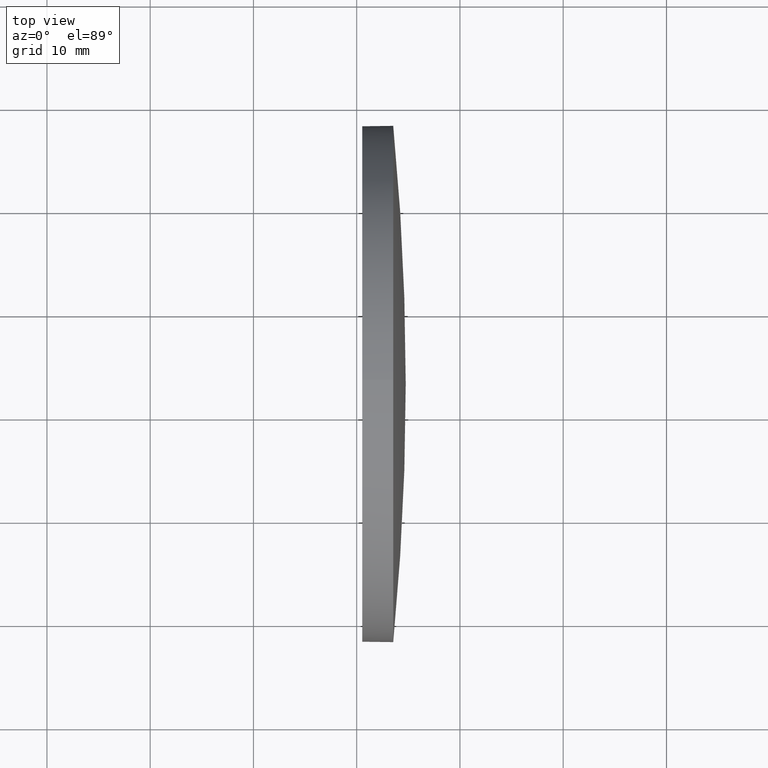
[diagram: clean part render]
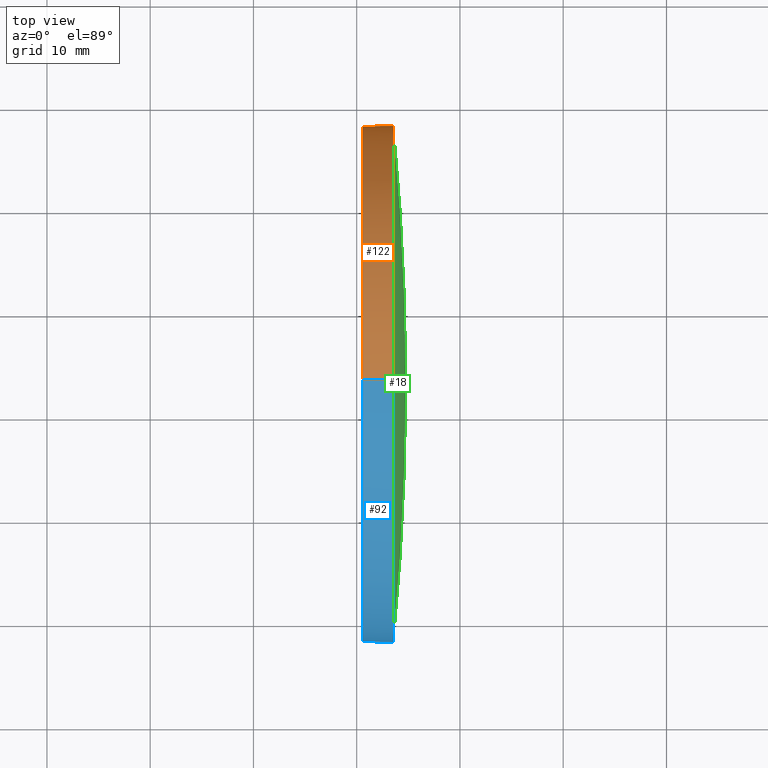
[diagram: same view with three faces highlighted in distinct colors, each labeled with its STEP entity id]
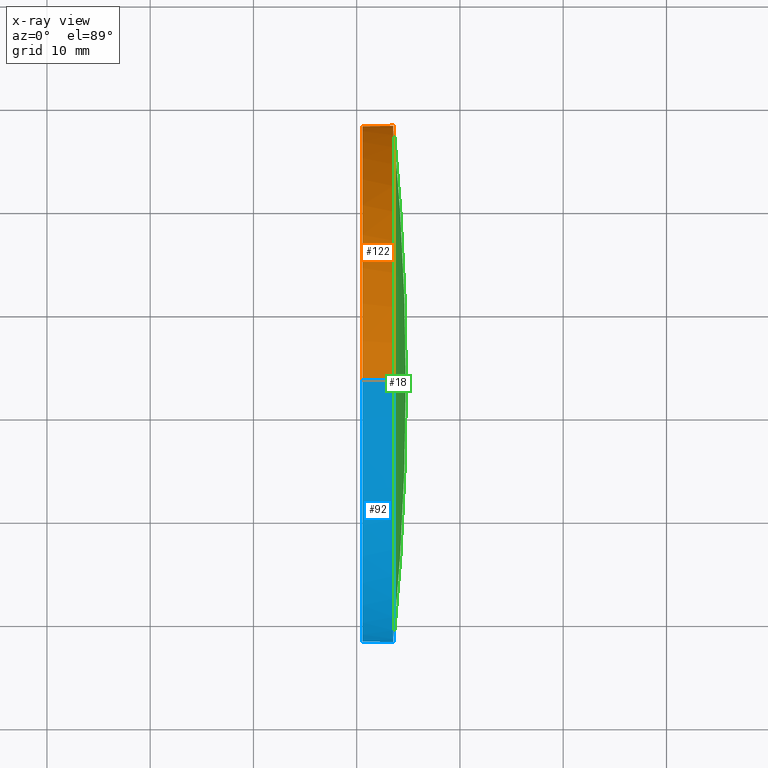
[diagram: x-ray of the same camera — body ghosted, the three highlighted faces saturated]
A machine part, top view with three faces highlighted in distinct colors.
The next image is the same camera in x-ray (body ghosted, the three faces saturated) — at least one of them is partly hidden behind the body in this view.
Their STEP definitions:

[orange] entity #122 — the highlighted cylindrical surface (partial cylindrical patch) has radius 25 mm, axis along (-1, -0, -0).
#3 = AXIS2_PLACEMENT_3D ( 'NONE', #9, #176, #63 ) ;
#4 = DIRECTION ( 'NONE',  ( -1.000000000000000000, -0.0000000000000000000, -0.0000000000000000000 ) ) ;
#9 = CARTESIAN_POINT ( 'NONE',  ( 453.5393403652467400, 83.03950815417408600, 0.0000000000000000000 ) ) ;
#10 = DIRECTION ( 'NONE',  ( -1.000000000000000000, -0.0000000000000000000, -0.0000000000000000000 ) ) ;
#16 = AXIS2_PLACEMENT_3D ( 'NONE', #114, #58, #159 ) ;
#17 = EDGE_CURVE ( 'NONE', #137, #184, #162, .T. ) ;
#20 = VECTOR ( 'NONE', #24, 1000.000000000000000 ) ;
#21 = VERTEX_POINT ( 'NONE', #29 ) ;
#24 = DIRECTION ( 'NONE',  ( -1.000000000000000000, -0.0000000000000000000, -0.0000000000000000000 ) ) ;
#29 = CARTESIAN_POINT ( 'NONE',  ( 450.5393403652467400, 83.03950815417408600, 24.99999999999999300 ) ) ;
#32 = EDGE_CURVE ( 'NONE', #34, #123, #36, .T. ) ;
#33 = ORIENTED_EDGE ( 'NONE', *, *, #35, .F. ) ;
#34 = VERTEX_POINT ( 'NONE', #60 ) ;
#35 = EDGE_CURVE ( 'NONE', #34, #21, #153, .T. ) ;
#36 = CIRCLE ( 'NONE', #16, 24.99999999999999300 ) ;
#37 = EDGE_LOOP ( 'NONE', ( #172, #74, #104, #33, #89 ) ) ;
#39 = CARTESIAN_POINT ( 'NONE',  ( 453.5393403652466900, 108.0395081541740200, 0.0000000000000000000 ) ) ;
#45 = DIRECTION ( 'NONE',  ( 0.0000000000000000000, 0.0000000000000000000, 1.000000000000000000 ) ) ;
#46 = CARTESIAN_POINT ( 'NONE',  ( 450.5393403652467400, 83.03950815417408600, 0.0000000000000000000 ) ) ;
#50 = VECTOR ( 'NONE', #94, 1000.000000000000000 ) ;
#58 = DIRECTION ( 'NONE',  ( -1.000000000000000000, -0.0000000000000000000, -0.0000000000000000000 ) ) ;
#60 = CARTESIAN_POINT ( 'NONE',  ( 453.5393403652467400, 83.03950815417408600, 24.99999999999999300 ) ) ;
#63 = DIRECTION ( 'NONE',  ( 0.0000000000000000000, 0.0000000000000000000, 1.000000000000000000 ) ) ;
#74 = ORIENTED_EDGE ( 'NONE', *, *, #17, .T. ) ;
#80 = CARTESIAN_POINT ( 'NONE',  ( 441.1171009280595300, 83.03950815417408600, -24.99999999999999300 ) ) ;
#82 = CIRCLE ( 'NONE', #3, 24.99999999999999300 ) ;
#88 = AXIS2_PLACEMENT_3D ( 'NONE', #100, #4, #45 ) ;
#89 = ORIENTED_EDGE ( 'NONE', *, *, #32, .T. ) ;
#94 = DIRECTION ( 'NONE',  ( -1.000000000000000000, -0.0000000000000000000, -0.0000000000000000000 ) ) ;
#95 = CARTESIAN_POINT ( 'NONE',  ( 441.1171009280595300, 83.03950815417408600, 24.99999999999999300 ) ) ;
#100 = CARTESIAN_POINT ( 'NONE',  ( 441.1171009280595300, 83.03950815417408600, 0.0000000000000000000 ) ) ;
#102 = CARTESIAN_POINT ( 'NONE',  ( 450.5393403652467400, 83.03950815417408600, -24.99999999999999300 ) ) ;
#104 = ORIENTED_EDGE ( 'NONE', *, *, #132, .F. ) ;
#111 = CARTESIAN_POINT ( 'NONE',  ( 453.5393403652467400, 83.03950815417408600, -24.99999999999999300 ) ) ;
#114 = CARTESIAN_POINT ( 'NONE',  ( 453.5393403652467400, 83.03950815417408600, 0.0000000000000000000 ) ) ;
#122 = ADVANCED_FACE ( 'NONE', ( #183 ), #124, .T. ) ;
#123 = VERTEX_POINT ( 'NONE', #39 ) ;
#124 = CYLINDRICAL_SURFACE ( 'NONE', #88, 24.99999999999999300 ) ;
#132 = EDGE_CURVE ( 'NONE', #21, #184, #134, .T. ) ;
#134 = CIRCLE ( 'NONE', #155, 24.99999999999999300 ) ;
#137 = VERTEX_POINT ( 'NONE', #111 ) ;
#153 = LINE ( 'NONE', #95, #20 ) ;
#155 = AXIS2_PLACEMENT_3D ( 'NONE', #46, #10, #182 ) ;
#159 = DIRECTION ( 'NONE',  ( 0.0000000000000000000, 0.0000000000000000000, 1.000000000000000000 ) ) ;
#162 = LINE ( 'NONE', #80, #50 ) ;
#171 = EDGE_CURVE ( 'NONE', #123, #137, #82, .T. ) ;
#172 = ORIENTED_EDGE ( 'NONE', *, *, #171, .T. ) ;
#176 = DIRECTION ( 'NONE',  ( -1.000000000000000000, -0.0000000000000000000, -0.0000000000000000000 ) ) ;
#182 = DIRECTION ( 'NONE',  ( 0.0000000000000000000, 0.0000000000000000000, 1.000000000000000000 ) ) ;
#183 = FACE_OUTER_BOUND ( 'NONE', #37, .T. ) ;
#184 = VERTEX_POINT ( 'NONE', #102 ) ;

[blue] entity #92 — the highlighted cylindrical surface (partial cylindrical patch) has radius 25 mm, axis along (-1, -0, -0).
#2 = VERTEX_POINT ( 'NONE', #138 ) ;
#12 = CARTESIAN_POINT ( 'NONE',  ( 450.5393403652467400, 83.03950815417408600, 0.0000000000000000000 ) ) ;
#17 = EDGE_CURVE ( 'NONE', #137, #184, #162, .T. ) ;
#20 = VECTOR ( 'NONE', #24, 1000.000000000000000 ) ;
#21 = VERTEX_POINT ( 'NONE', #29 ) ;
#24 = DIRECTION ( 'NONE',  ( -1.000000000000000000, -0.0000000000000000000, -0.0000000000000000000 ) ) ;
#27 = DIRECTION ( 'NONE',  ( -1.000000000000000000, -0.0000000000000000000, -0.0000000000000000000 ) ) ;
#29 = CARTESIAN_POINT ( 'NONE',  ( 450.5393403652467400, 83.03950815417408600, 24.99999999999999300 ) ) ;
#31 = DIRECTION ( 'NONE',  ( 0.0000000000000000000, 0.0000000000000000000, 1.000000000000000000 ) ) ;
#34 = VERTEX_POINT ( 'NONE', #60 ) ;
#35 = EDGE_CURVE ( 'NONE', #34, #21, #153, .T. ) ;
#49 = AXIS2_PLACEMENT_3D ( 'NONE', #109, #70, #177 ) ;
#50 = VECTOR ( 'NONE', #94, 1000.000000000000000 ) ;
#52 = EDGE_CURVE ( 'NONE', #2, #34, #151, .T. ) ;
#57 = AXIS2_PLACEMENT_3D ( 'NONE', #158, #27, #31 ) ;
#59 = CIRCLE ( 'NONE', #164, 24.99999999999999300 ) ;
#60 = CARTESIAN_POINT ( 'NONE',  ( 453.5393403652467400, 83.03950815417408600, 24.99999999999999300 ) ) ;
#70 = DIRECTION ( 'NONE',  ( -1.000000000000000000, -0.0000000000000000000, -0.0000000000000000000 ) ) ;
#78 = AXIS2_PLACEMENT_3D ( 'NONE', #143, #126, #163 ) ;
#80 = CARTESIAN_POINT ( 'NONE',  ( 441.1171009280595300, 83.03950815417408600, -24.99999999999999300 ) ) ;
#81 = DIRECTION ( 'NONE',  ( -1.000000000000000000, -0.0000000000000000000, -0.0000000000000000000 ) ) ;
#92 = ADVANCED_FACE ( 'NONE', ( #112 ), #133, .T. ) ;
#94 = DIRECTION ( 'NONE',  ( -1.000000000000000000, -0.0000000000000000000, -0.0000000000000000000 ) ) ;
#95 = CARTESIAN_POINT ( 'NONE',  ( 441.1171009280595300, 83.03950815417408600, 24.99999999999999300 ) ) ;
#102 = CARTESIAN_POINT ( 'NONE',  ( 450.5393403652467400, 83.03950815417408600, -24.99999999999999300 ) ) ;
#105 = EDGE_LOOP ( 'NONE', ( #121, #120, #127, #178, #108 ) ) ;
#108 = ORIENTED_EDGE ( 'NONE', *, *, #186, .F. ) ;
#109 = CARTESIAN_POINT ( 'NONE',  ( 453.5393403652467400, 83.03950815417408600, 0.0000000000000000000 ) ) ;
#111 = CARTESIAN_POINT ( 'NONE',  ( 453.5393403652467400, 83.03950815417408600, -24.99999999999999300 ) ) ;
#112 = FACE_OUTER_BOUND ( 'NONE', #105, .T. ) ;
#120 = ORIENTED_EDGE ( 'NONE', *, *, #140, .T. ) ;
#121 = ORIENTED_EDGE ( 'NONE', *, *, #17, .F. ) ;
#126 = DIRECTION ( 'NONE',  ( -1.000000000000000000, -0.0000000000000000000, -0.0000000000000000000 ) ) ;
#127 = ORIENTED_EDGE ( 'NONE', *, *, #52, .T. ) ;
#128 = DIRECTION ( 'NONE',  ( 0.0000000000000000000, 0.0000000000000000000, 1.000000000000000000 ) ) ;
#133 = CYLINDRICAL_SURFACE ( 'NONE', #78, 24.99999999999999300 ) ;
#137 = VERTEX_POINT ( 'NONE', #111 ) ;
#138 = CARTESIAN_POINT ( 'NONE',  ( 453.5393403652466900, 58.03950815417373100, -3.061616997868374800E-015 ) ) ;
#140 = EDGE_CURVE ( 'NONE', #137, #2, #156, .T. ) ;
#143 = CARTESIAN_POINT ( 'NONE',  ( 441.1171009280595300, 83.03950815417408600, 0.0000000000000000000 ) ) ;
#151 = CIRCLE ( 'NONE', #49, 24.99999999999999300 ) ;
#153 = LINE ( 'NONE', #95, #20 ) ;
#156 = CIRCLE ( 'NONE', #57, 24.99999999999999300 ) ;
#158 = CARTESIAN_POINT ( 'NONE',  ( 453.5393403652467400, 83.03950815417408600, 0.0000000000000000000 ) ) ;
#162 = LINE ( 'NONE', #80, #50 ) ;
#163 = DIRECTION ( 'NONE',  ( 0.0000000000000000000, 0.0000000000000000000, 1.000000000000000000 ) ) ;
#164 = AXIS2_PLACEMENT_3D ( 'NONE', #12, #81, #128 ) ;
#177 = DIRECTION ( 'NONE',  ( 0.0000000000000000000, 0.0000000000000000000, 1.000000000000000000 ) ) ;
#178 = ORIENTED_EDGE ( 'NONE', *, *, #35, .T. ) ;
#184 = VERTEX_POINT ( 'NONE', #102 ) ;
#186 = EDGE_CURVE ( 'NONE', #184, #21, #59, .T. ) ;

[green] entity #18 — the highlighted spherical surface has radius 258.87 mm.
#2 = VERTEX_POINT ( 'NONE', #138 ) ;
#8 = CARTESIAN_POINT ( 'NONE',  ( 195.8798775553282500, 83.03950815417367400, 0.0000000000000000000 ) ) ;
#16 = AXIS2_PLACEMENT_3D ( 'NONE', #114, #58, #159 ) ;
#18 = ADVANCED_FACE ( 'NONE', ( #154 ), #75, .T. ) ;
#23 = EDGE_LOOP ( 'NONE', ( #66, #96, #107, #165 ) ) ;
#28 = DIRECTION ( 'NONE',  ( 0.0000000000000000000, 1.000000000000000000, 1.224646799147353200E-016 ) ) ;
#30 = DIRECTION ( 'NONE',  ( 0.0000000000000000000, 1.224646799147353200E-016, -1.000000000000000000 ) ) ;
#32 = EDGE_CURVE ( 'NONE', #34, #123, #36, .T. ) ;
#34 = VERTEX_POINT ( 'NONE', #60 ) ;
#36 = CIRCLE ( 'NONE', #16, 24.99999999999999300 ) ;
#39 = CARTESIAN_POINT ( 'NONE',  ( 453.5393403652466900, 108.0395081541740200, 0.0000000000000000000 ) ) ;
#48 = CIRCLE ( 'NONE', #106, 258.8694628099185000 ) ;
#49 = AXIS2_PLACEMENT_3D ( 'NONE', #109, #70, #177 ) ;
#52 = EDGE_CURVE ( 'NONE', #2, #34, #151, .T. ) ;
#53 = CIRCLE ( 'NONE', #139, 258.8694628099185000 ) ;
#58 = DIRECTION ( 'NONE',  ( -1.000000000000000000, -0.0000000000000000000, -0.0000000000000000000 ) ) ;
#60 = CARTESIAN_POINT ( 'NONE',  ( 453.5393403652467400, 83.03950815417408600, 24.99999999999999300 ) ) ;
#66 = ORIENTED_EDGE ( 'NONE', *, *, #152, .F. ) ;
#70 = DIRECTION ( 'NONE',  ( -1.000000000000000000, -0.0000000000000000000, -0.0000000000000000000 ) ) ;
#75 = SPHERICAL_SURFACE ( 'NONE', #136, 258.8694628099185000 ) ;
#83 = CARTESIAN_POINT ( 'NONE',  ( 195.8798775553282500, 83.03950815417367400, 0.0000000000000000000 ) ) ;
#96 = ORIENTED_EDGE ( 'NONE', *, *, #174, .T. ) ;
#98 = VERTEX_POINT ( 'NONE', #179 ) ;
#101 = DIRECTION ( 'NONE',  ( -0.0000000000000000000, 0.0000000000000000000, 1.000000000000000000 ) ) ;
#106 = AXIS2_PLACEMENT_3D ( 'NONE', #142, #30, #28 ) ;
#107 = ORIENTED_EDGE ( 'NONE', *, *, #32, .F. ) ;
#109 = CARTESIAN_POINT ( 'NONE',  ( 453.5393403652467400, 83.03950815417408600, 0.0000000000000000000 ) ) ;
#114 = CARTESIAN_POINT ( 'NONE',  ( 453.5393403652467400, 83.03950815417408600, 0.0000000000000000000 ) ) ;
#116 = DIRECTION ( 'NONE',  ( -0.0000000000000000000, 0.0000000000000000000, -1.000000000000000000 ) ) ;
#123 = VERTEX_POINT ( 'NONE', #39 ) ;
#136 = AXIS2_PLACEMENT_3D ( 'NONE', #8, #116, #141 ) ;
#138 = CARTESIAN_POINT ( 'NONE',  ( 453.5393403652466900, 58.03950815417373100, -3.061616997868374800E-015 ) ) ;
#139 = AXIS2_PLACEMENT_3D ( 'NONE', #83, #101, #160 ) ;
#141 = DIRECTION ( 'NONE',  ( 0.0000000000000000000, 1.000000000000000000, 0.0000000000000000000 ) ) ;
#142 = CARTESIAN_POINT ( 'NONE',  ( 195.8798775553282500, 83.03950815417367400, 0.0000000000000000000 ) ) ;
#151 = CIRCLE ( 'NONE', #49, 24.99999999999999300 ) ;
#152 = EDGE_CURVE ( 'NONE', #98, #2, #48, .T. ) ;
#154 = FACE_OUTER_BOUND ( 'NONE', #23, .T. ) ;
#159 = DIRECTION ( 'NONE',  ( 0.0000000000000000000, 0.0000000000000000000, 1.000000000000000000 ) ) ;
#160 = DIRECTION ( 'NONE',  ( 1.000000000000000000, 0.0000000000000000000, 0.0000000000000000000 ) ) ;
#165 = ORIENTED_EDGE ( 'NONE', *, *, #52, .F. ) ;
#174 = EDGE_CURVE ( 'NONE', #98, #123, #53, .T. ) ;
#177 = DIRECTION ( 'NONE',  ( 0.0000000000000000000, 0.0000000000000000000, 1.000000000000000000 ) ) ;
#179 = CARTESIAN_POINT ( 'NONE',  ( 454.7493403652467200, 83.03950815417368900, 0.0000000000000000000 ) ) ;